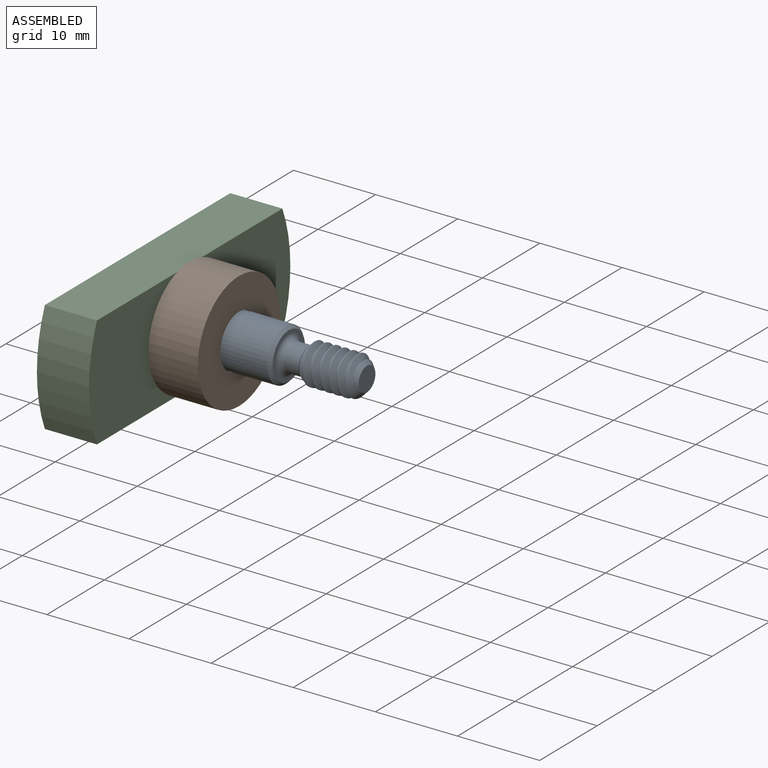
[diagram: assembled view]
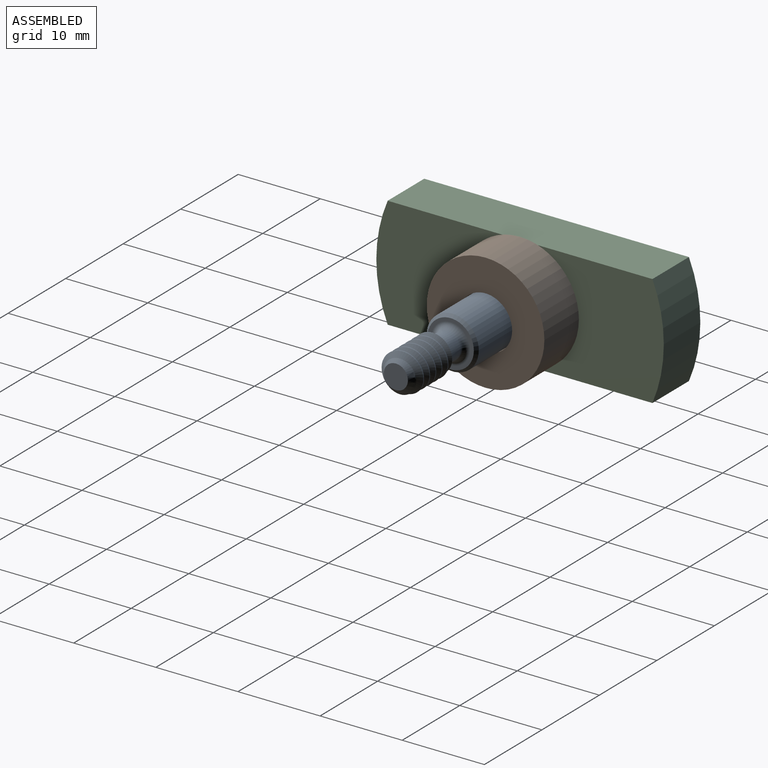
[diagram: assembled view, second angle]
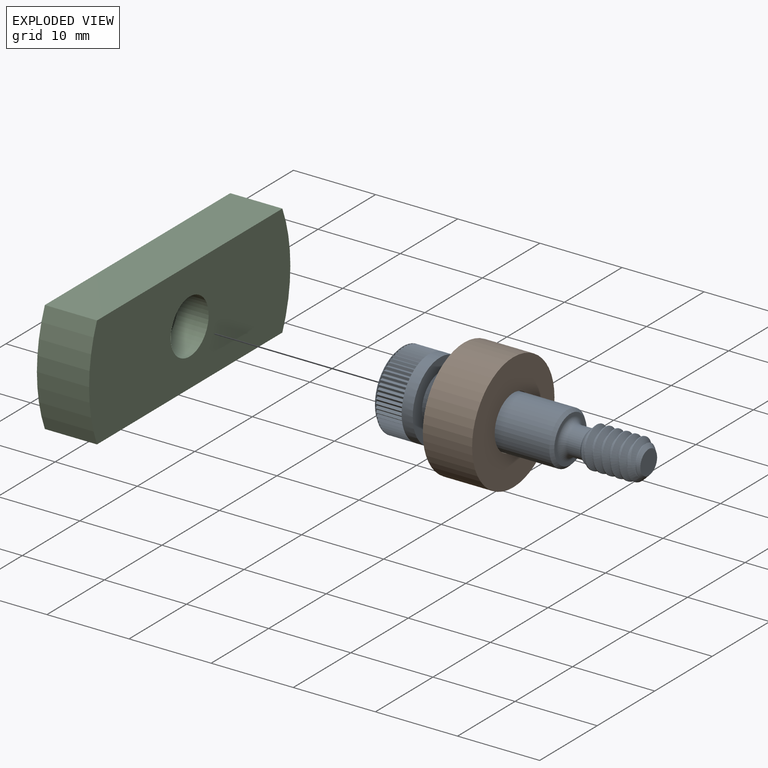
[diagram: exploded view]
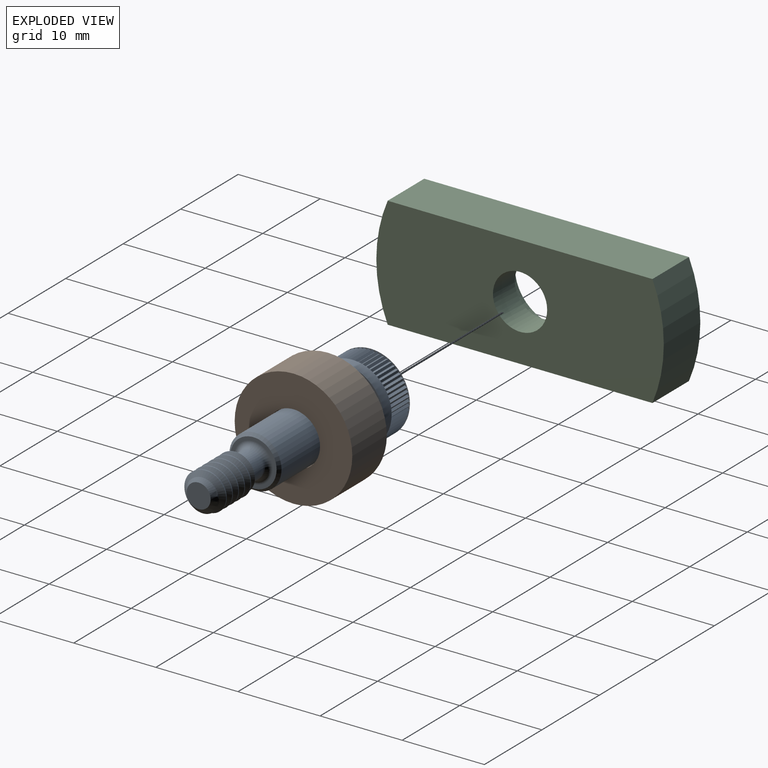
[diagram: exploded view, second angle]
ASSEMBLY  parts=3 mates=3
PART A: 331 faces, bbox 10.2x10.2x31 mm
  f0: cylinder r=4.76mm len=9.53mm, axis (0,0,-1), area 40.4mm2, adj f3,f30,f35,f36,f37,f38,f39,f40
  f1: plane 5.64x5.64mm, normal (0,0,-1), area 7.2mm2, adj f20,f29
  f2: plane 9.64x9.64mm, normal (0,0,1), area 53.8mm2, adj f4,f5,f6,f7,f8,f9,f330
  f3: plane 9.53x9.53mm, normal (0,0,-1), area 39.6mm2, adj f0,f17
  f4: cone r=1.83mm half-angle=45deg, axis (0,0,1), area 0mm2, adj f2,f11
  f5: cone r=1.83mm half-angle=45deg, axis (0,0,1), area 0mm2, adj f2,f12
  f6: cone r=1.83mm half-angle=45deg, axis (0,0,1), area 0mm2, adj f2,f13
  f7: cone r=1.83mm half-angle=45deg, axis (0,0,1), area 0mm2, adj f2,f14
  f8: cone r=1.83mm half-angle=45deg, axis (0,0,1), area 0mm2, adj f2,f15
  f9: cone r=1.83mm half-angle=45deg, axis (0,0,1), area 0mm2, adj f2,f16
  f10: plane 3.67x3.18mm, normal (0,0,1), area 8.7mm2, adj f11,f12,f13,f14,f15,f16
  f11: plane 3.08x2.28mm, normal (0.5,-0.87,0), area 4.1mm2, adj f4,f10,f12,f16
  f12: plane 3.08x2.53mm, normal (1,0,0), area 4.1mm2, adj f5,f10,f11,f13
  f13: plane 3.08x2.28mm, normal (0.5,0.87,0), area 4.1mm2, adj f6,f10,f12,f14
  f14: plane 3.08x2.28mm, normal (-0.5,0.87,0), area 4.1mm2, adj f7,f10,f13,f15
  f15: plane 3.08x2.53mm, normal (-1,0,0), area 4.1mm2, adj f8,f10,f14,f16
  f16: plane 3.08x2.28mm, normal (-0.5,-0.87,0), area 4.1mm2, adj f9,f10,f11,f15
  f17: cylinder r=3.17mm len=15.52mm, axis (0,0,-1), area 309.7mm2, adj f3,f29
  f18: cone r=1.67mm half-angle=45deg, axis (0,0,-1), area 6.5mm2, adj f19,f21,f25,f26,f27
  f19: cone r=1.67mm half-angle=45deg, axis (0,0,-1), area 0.4mm2, adj f18,f27,f28
  f20: torus R=2.38mm, axis (0,0,1), area 13.6mm2, adj f1,f21
  f21: cylinder r=1.67mm len=3.33mm, axis (0,0,1), area 17.5mm2, adj f18,f20
  f22: plane 2.92x2.92mm, normal (0,0,-1), area 6.7mm2, adj f23
  f23: cone r=1.46mm half-angle=45deg, axis (0,0,1), area 9.3mm2, adj f22,f24,f25,f26,f27
  f24: cone r=1.46mm half-angle=45deg, axis (0,0,1), area 0.6mm2, adj f23,f26,f27,f28
  f25: cylinder r=1.73mm len=6.82mm, axis (0,0,1), area 14mm2, adj f18,f23,f26,f27
  f26: bspline ~7.45x5.38mm, area 59.4mm2, adj f18,f23,f24,f25,f28
  f27: bspline ~7.28x5.38mm, area 59.5mm2, adj f18,f19,f23,f24,f25,f28
  f28: cylinder r=2.41mm len=5.44mm, axis (0,0,1), area 9.6mm2, adj f19,f24,f26,f27
  f29: cone r=2.82mm half-angle=45deg, axis (0,0,1), area 9.4mm2, adj f1,f17
  f30: plane 0.5x0.24mm, normal (0,0,1), area 0.1mm2, adj f0,f32,f33,f34
  f31: plane 0.5x0.24mm, normal (0,0,-1), area 0.1mm2, adj f32,f33,f34,f330
  f32: plane 3.18x0.22mm, normal (0.71,-0.71,0), area 1mm2, adj f30,f31,f34,f328
  f33: plane 3.18x0.22mm, normal (0.71,0.71,0), area 1mm2, adj f30,f31,f34,f153
  f34: cylinder r=0.04mm len=3.18mm, axis (0,0,1), area 0.2mm2, adj f30,f31,f32,f33
  f35: plane 0.5x0.26mm, normal (0,0,1), area 0.1mm2, adj f0,f153,f154,f155
  f36: plane 0.49x0.28mm, normal (0,0,1), area 0.1mm2, adj f0,f156,f157,f158
  f37: plane 0.47x0.3mm, normal (0,0,1), area 0.1mm2, adj f0,f159,f160,f161
  f38: plane 0.46x0.32mm, normal (0,0,1), area 0.1mm2, adj f0,f162,f163,f164
  f39: plane 0.43x0.33mm, normal (0,0,1), area 0.1mm2, adj f0,f165,f166,f167
  f40: plane 0.4x0.34mm, normal (0,0,1), area 0.1mm2, adj f0,f168,f169,f170
  f41: plane 0.37x0.35mm, normal (0,0,1), area 0.1mm2, adj f0,f171,f172,f173
  f42: plane 0.37x0.35mm, normal (0,0,1), area 0.1mm2, adj f0,f174,f175,f176
  f43: plane 0.4x0.34mm, normal (0,0,1), area 0.1mm2, adj f0,f177,f178,f179
  f44: plane 0.43x0.33mm, normal (0,0,1), area 0.1mm2, adj f0,f180,f181,f182
  f45: plane 0.46x0.32mm, normal (0,0,1), area 0.1mm2, adj f0,f183,f184,f185
  f46: plane 0.47x0.3mm, normal (0,0,1), area 0.1mm2, adj f0,f186,f187,f188
  f47: plane 0.49x0.28mm, normal (0,0,1), area 0.1mm2, adj f0,f189,f190,f191
  f48: plane 0.5x0.26mm, normal (0,0,1), area 0.1mm2, adj f0,f192,f193,f194
  f49: plane 0.5x0.26mm, normal (0,0,1), area 0.1mm2, adj f0,f327,f328,f329
  f50: plane 0.49x0.28mm, normal (0,0,1), area 0.1mm2, adj f0,f324,f325,f326
  f51: plane 0.47x0.3mm, normal (0,0,1), area 0.1mm2, adj f0,f321,f322,f323
  f52: plane 0.46x0.32mm, normal (0,0,1), area 0.1mm2, adj f0,f318,f319,f320
  f53: plane 0.43x0.33mm, normal (0,0,1), area 0.1mm2, adj f0,f315,f316,f317
  f54: plane 0.4x0.34mm, normal (0,0,1), area 0.1mm2, adj f0,f312,f313,f314
  f55: plane 0.37x0.35mm, normal (0,0,1), area 0.1mm2, adj f0,f309,f310,f311
  f56: plane 0.37x0.35mm, normal (0,0,1), area 0.1mm2, adj f0,f306,f307,f308
  f57: plane 0.4x0.34mm, normal (0,0,1), area 0.1mm2, adj f0,f303,f304,f305
  f58: plane 0.43x0.33mm, normal (0,0,1), area 0.1mm2, adj f0,f300,f301,f302
  f59: plane 0.46x0.32mm, normal (0,0,1), area 0.1mm2, adj f0,f297,f298,f299
  f60: plane 0.47x0.3mm, normal (0,0,1), area 0.1mm2, adj f0,f294,f295,f296
  f61: plane 0.49x0.28mm, normal (0,0,1), area 0.1mm2, adj f0,f291,f292,f293
  f62: plane 0.5x0.26mm, normal (0,0,1), area 0.1mm2, adj f0,f288,f289,f290
  f63: plane 0.5x0.24mm, normal (0,0,1), area 0.1mm2, adj f0,f285,f286,f287
  f64: plane 0.5x0.26mm, normal (0,0,1), area 0.1mm2, adj f0,f282,f283,f284
  f65: plane 0.49x0.28mm, normal (0,0,1), area 0.1mm2, adj f0,f279,f280,f281
  f66: plane 0.47x0.3mm, normal (0,0,1), area 0.1mm2, adj f0,f276,f277,f278
  f67: plane 0.46x0.32mm, normal (0,0,1), area 0.1mm2, adj f0,f273,f274,f275
  f68: plane 0.43x0.33mm, normal (0,0,1), area 0.1mm2, adj f0,f270,f271,f272
  f69: plane 0.4x0.34mm, normal (0,0,1), area 0.1mm2, adj f0,f267,f268,f269
  f70: plane 0.37x0.35mm, normal (0,0,1), area 0.1mm2, adj f0,f264,f265,f266
  f71: plane 0.37x0.35mm, normal (0,0,1), area 0.1mm2, adj f0,f261,f262,f263
  f72: plane 0.4x0.34mm, normal (0,0,1), area 0.1mm2, adj f0,f258,f259,f260
  f73: plane 0.43x0.33mm, normal (0,0,1), area 0.1mm2, adj f0,f255,f256,f257
  f74: plane 0.46x0.32mm, normal (0,0,1), area 0.1mm2, adj f0,f252,f253,f254
  f75: plane 0.47x0.3mm, normal (0,0,1), area 0.1mm2, adj f0,f249,f250,f251
  f76: plane 0.49x0.28mm, normal (0,0,1), area 0.1mm2, adj f0,f246,f247,f248
  f77: plane 0.5x0.26mm, normal (0,0,1), area 0.1mm2, adj f0,f243,f244,f245
  f78: plane 0.5x0.24mm, normal (0,0,1), area 0.1mm2, adj f0,f240,f241,f242
  f79: plane 0.5x0.26mm, normal (0,0,1), area 0.1mm2, adj f0,f237,f238,f239
  f80: plane 0.49x0.28mm, normal (0,0,1), area 0.1mm2, adj f0,f234,f235,f236
  f81: plane 0.47x0.3mm, normal (0,0,1), area 0.1mm2, adj f0,f231,f232,f233
  f82: plane 0.46x0.32mm, normal (0,0,1), area 0.1mm2, adj f0,f228,f229,f230
  f83: plane 0.43x0.33mm, normal (0,0,1), area 0.1mm2, adj f0,f225,f226,f227
  f84: plane 0.4x0.34mm, normal (0,0,1), area 0.1mm2, adj f0,f222,f223,f224
  f85: plane 0.37x0.35mm, normal (0,0,1), area 0.1mm2, adj f0,f219,f220,f221
  f86: plane 0.37x0.35mm, normal (0,0,1), area 0.1mm2, adj f0,f216,f217,f218
  f87: plane 0.4x0.34mm, normal (0,0,1), area 0.1mm2, adj f0,f213,f214,f215
  f88: plane 0.43x0.33mm, normal (0,0,1), area 0.1mm2, adj f0,f210,f211,f212
  f89: plane 0.46x0.32mm, normal (0,0,1), area 0.1mm2, adj f0,f207,f208,f209
  f90: plane 0.47x0.3mm, normal (0,0,1), area 0.1mm2, adj f0,f204,f205,f206
  f91: plane 0.49x0.28mm, normal (0,0,1), area 0.1mm2, adj f0,f201,f202,f203
  f92: plane 0.5x0.26mm, normal (0,0,1), area 0.1mm2, adj f0,f198,f199,f200
  f93: plane 0.5x0.24mm, normal (0,0,1), area 0.1mm2, adj f0,f195,f196,f197
  f94: plane 0.5x0.26mm, normal (0,0,-1), area 0.1mm2, adj f153,f154,f155,f330
  f95: plane 0.49x0.28mm, normal (0,0,-1), area 0.1mm2, adj f156,f157,f158,f330
  f96: plane 0.47x0.3mm, normal (0,0,-1), area 0.1mm2, adj f159,f160,f161,f330
  f97: plane 0.46x0.32mm, normal (0,0,-1), area 0.1mm2, adj f162,f163,f164,f330
  f98: plane 0.43x0.33mm, normal (0,0,-1), area 0.1mm2, adj f165,f166,f167,f330
  f99: plane 0.4x0.34mm, normal (0,0,-1), area 0.1mm2, adj f168,f169,f170,f330
  f100: plane 0.37x0.35mm, normal (0,0,-1), area 0.1mm2, adj f171,f172,f173,f330
  f101: plane 0.37x0.35mm, normal (0,0,-1), area 0.1mm2, adj f174,f175,f176,f330
  f102: plane 0.4x0.34mm, normal (0,0,-1), area 0.1mm2, adj f177,f178,f179,f330
  f103: plane 0.43x0.33mm, normal (0,0,-1), area 0.1mm2, adj f180,f181,f182,f330
  f104: plane 0.46x0.32mm, normal (0,0,-1), area 0.1mm2, adj f183,f184,f185,f330
  f105: plane 0.47x0.3mm, normal (0,0,-1), area 0.1mm2, adj f186,f187,f188,f330
  f106: plane 0.49x0.28mm, normal (0,0,-1), area 0.1mm2, adj f189,f190,f191,f330
  f107: plane 0.5x0.26mm, normal (0,0,-1), area 0.1mm2, adj f192,f193,f194,f330
  f108: plane 0.5x0.26mm, normal (0,0,-1), area 0.1mm2, adj f327,f328,f329,f330
  f109: plane 0.49x0.28mm, normal (0,0,-1), area 0.1mm2, adj f324,f325,f326,f330
  f110: plane 0.47x0.3mm, normal (0,0,-1), area 0.1mm2, adj f321,f322,f323,f330
  f111: plane 0.46x0.32mm, normal (0,0,-1), area 0.1mm2, adj f318,f319,f320,f330
  f112: plane 0.43x0.33mm, normal (0,0,-1), area 0.1mm2, adj f315,f316,f317,f330
  f113: plane 0.4x0.34mm, normal (0,0,-1), area 0.1mm2, adj f312,f313,f314,f330
  f114: plane 0.37x0.35mm, normal (0,0,-1), area 0.1mm2, adj f309,f310,f311,f330
  f115: plane 0.37x0.35mm, normal (0,0,-1), area 0.1mm2, adj f306,f307,f308,f330
  f116: plane 0.4x0.34mm, normal (0,0,-1), area 0.1mm2, adj f303,f304,f305,f330
  f117: plane 0.43x0.33mm, normal (0,0,-1), area 0.1mm2, adj f300,f301,f302,f330
  f118: plane 0.46x0.32mm, normal (0,0,-1), area 0.1mm2, adj f297,f298,f299,f330
  f119: plane 0.47x0.3mm, normal (0,0,-1), area 0.1mm2, adj f294,f295,f296,f330
  f120: plane 0.49x0.28mm, normal (0,0,-1), area 0.1mm2, adj f291,f292,f293,f330
  f121: plane 0.5x0.26mm, normal (0,0,-1), area 0.1mm2, adj f288,f289,f290,f330
  f122: plane 0.5x0.24mm, normal (0,0,-1), area 0.1mm2, adj f285,f286,f287,f330
  f123: plane 0.5x0.26mm, normal (0,0,-1), area 0.1mm2, adj f282,f283,f284,f330
  f124: plane 0.49x0.28mm, normal (0,0,-1), area 0.1mm2, adj f279,f280,f281,f330
  f125: plane 0.47x0.3mm, normal (0,0,-1), area 0.1mm2, adj f276,f277,f278,f330
  f126: plane 0.46x0.32mm, normal (0,0,-1), area 0.1mm2, adj f273,f274,f275,f330
  f127: plane 0.43x0.33mm, normal (0,0,-1), area 0.1mm2, adj f270,f271,f272,f330
  f128: plane 0.4x0.34mm, normal (0,0,-1), area 0.1mm2, adj f267,f268,f269,f330
  f129: plane 0.37x0.35mm, normal (0,0,-1), area 0.1mm2, adj f264,f265,f266,f330
  f130: plane 0.37x0.35mm, normal (0,0,-1), area 0.1mm2, adj f261,f262,f263,f330
  f131: plane 0.4x0.34mm, normal (0,0,-1), area 0.1mm2, adj f258,f259,f260,f330
  f132: plane 0.43x0.33mm, normal (0,0,-1), area 0.1mm2, adj f255,f256,f257,f330
  f133: plane 0.46x0.32mm, normal (0,0,-1), area 0.1mm2, adj f252,f253,f254,f330
  f134: plane 0.47x0.3mm, normal (0,0,-1), area 0.1mm2, adj f249,f250,f251,f330
  f135: plane 0.49x0.28mm, normal (0,0,-1), area 0.1mm2, adj f246,f247,f248,f330
  f136: plane 0.5x0.26mm, normal (0,0,-1), area 0.1mm2, adj f243,f244,f245,f330
  f137: plane 0.5x0.24mm, normal (0,0,-1), area 0.1mm2, adj f240,f241,f242,f330
  f138: plane 0.5x0.26mm, normal (0,0,-1), area 0.1mm2, adj f237,f238,f239,f330
  f139: plane 0.49x0.28mm, normal (0,0,-1), area 0.1mm2, adj f234,f235,f236,f330
  f140: plane 0.47x0.3mm, normal (0,0,-1), area 0.1mm2, adj f231,f232,f233,f330
  f141: plane 0.46x0.32mm, normal (0,0,-1), area 0.1mm2, adj f228,f229,f230,f330
  f142: plane 0.43x0.33mm, normal (0,0,-1), area 0.1mm2, adj f225,f226,f227,f330
  f143: plane 0.4x0.34mm, normal (0,0,-1), area 0.1mm2, adj f222,f223,f224,f330
  f144: plane 0.37x0.35mm, normal (0,0,-1), area 0.1mm2, adj f219,f220,f221,f330
  f145: plane 0.37x0.35mm, normal (0,0,-1), area 0.1mm2, adj f216,f217,f218,f330
  f146: plane 0.4x0.34mm, normal (0,0,-1), area 0.1mm2, adj f213,f214,f215,f330
  f147: plane 0.43x0.33mm, normal (0,0,-1), area 0.1mm2, adj f210,f211,f212,f330
  f148: plane 0.46x0.32mm, normal (0,0,-1), area 0.1mm2, adj f207,f208,f209,f330
  f149: plane 0.47x0.3mm, normal (0,0,-1), area 0.1mm2, adj f204,f205,f206,f330
  f150: plane 0.49x0.28mm, normal (0,0,-1), area 0.1mm2, adj f201,f202,f203,f330
  f151: plane 0.5x0.26mm, normal (0,0,-1), area 0.1mm2, adj f198,f199,f200,f330
  f152: plane 0.5x0.24mm, normal (0,0,-1), area 0.1mm2, adj f195,f196,f197,f330
  f153: plane 3.18x0.24mm, normal (0.63,-0.78,0), area 1mm2, adj f33,f35,f94,f155
  f154: plane 3.18x0.24mm, normal (0.78,0.63,0), area 1mm2, adj f35,f94,f155,f156
  f155: cylinder r=0.04mm len=3.18mm, axis (0,0,1), area 0.2mm2, adj f35,f94,f153,f154
  f156: plane 3.18x0.26mm, normal (0.54,-0.84,0), area 1mm2, adj f36,f95,f154,f158
  f157: plane 3.18x0.26mm, normal (0.84,0.54,0), area 1mm2, adj f36,f95,f158,f159
  f158: cylinder r=0.04mm len=3.18mm, axis (0,0,1), area 0.2mm2, adj f36,f95,f156,f157
  f159: plane 3.18x0.28mm, normal (0.45,-0.89,0), area 1mm2, adj f37,f96,f157,f161
  f160: plane 3.18x0.28mm, normal (0.89,0.45,0), area 1mm2, adj f37,f96,f161,f162
  f161: cylinder r=0.04mm len=3.18mm, axis (0,0,1), area 0.2mm2, adj f37,f96,f159,f160
  f162: plane 3.18x0.29mm, normal (0.36,-0.93,0), area 1mm2, adj f38,f97,f160,f164
  f163: plane 3.18x0.29mm, normal (0.93,0.36,0), area 1mm2, adj f38,f97,f164,f165
  f164: cylinder r=0.04mm len=3.18mm, axis (0,0,1), area 0.2mm2, adj f38,f97,f162,f163
  f165: plane 3.18x0.3mm, normal (0.26,-0.97,0), area 1mm2, adj f39,f98,f163,f167
  f166: plane 3.18x0.3mm, normal (0.97,0.26,0), area 1mm2, adj f39,f98,f167,f168
  f167: cylinder r=0.04mm len=3.18mm, axis (0,0,1), area 0.2mm2, adj f39,f98,f165,f166
  f168: plane 3.18x0.31mm, normal (0.16,-0.99,0), area 1mm2, adj f40,f99,f166,f170
  f169: plane 3.18x0.31mm, normal (0.99,0.16,0), area 1mm2, adj f40,f99,f170,f171
  f170: cylinder r=0.04mm len=3.18mm, axis (0,0,1), area 0.2mm2, adj f40,f99,f168,f169
  f171: plane 3.18x0.31mm, normal (0.05,-1,0), area 1mm2, adj f41,f100,f169,f173
  f172: plane 3.18x0.31mm, normal (1,0.05,0), area 1mm2, adj f41,f100,f173,f174
  f173: cylinder r=0.04mm len=3.18mm, axis (0,0,1), area 0.2mm2, adj f41,f100,f171,f172
  f174: plane 3.18x0.31mm, normal (-0.05,-1,0), area 1mm2, adj f42,f101,f172,f176
  f175: plane 3.18x0.31mm, normal (1,-0.05,0), area 1mm2, adj f42,f101,f176,f177
  f176: cylinder r=0.04mm len=3.18mm, axis (0,0,1), area 0.2mm2, adj f42,f101,f174,f175
  f177: plane 3.18x0.31mm, normal (-0.16,-0.99,0), area 1mm2, adj f43,f102,f175,f179
  f178: plane 3.18x0.31mm, normal (0.99,-0.16,0), area 1mm2, adj f43,f102,f179,f180
  f179: cylinder r=0.04mm len=3.18mm, axis (0,0,1), area 0.2mm2, adj f43,f102,f177,f178
  f180: plane 3.18x0.3mm, normal (-0.26,-0.97,0), area 1mm2, adj f44,f103,f178,f182
  f181: plane 3.18x0.3mm, normal (0.97,-0.26,0), area 1mm2, adj f44,f103,f182,f183
  f182: cylinder r=0.04mm len=3.18mm, axis (0,0,1), area 0.2mm2, adj f44,f103,f180,f181
  f183: plane 3.18x0.29mm, normal (-0.36,-0.93,0), area 1mm2, adj f45,f104,f181,f185
  f184: plane 3.18x0.29mm, normal (0.93,-0.36,0), area 1mm2, adj f45,f104,f185,f186
  f185: cylinder r=0.04mm len=3.18mm, axis (0,0,1), area 0.2mm2, adj f45,f104,f183,f184
  f186: plane 3.18x0.28mm, normal (-0.45,-0.89,0), area 1mm2, adj f46,f105,f184,f188
  f187: plane 3.18x0.28mm, normal (0.89,-0.45,0), area 1mm2, adj f46,f105,f188,f189
  f188: cylinder r=0.04mm len=3.18mm, axis (0,0,1), area 0.2mm2, adj f46,f105,f186,f187
  f189: plane 3.18x0.26mm, normal (-0.54,-0.84,0), area 1mm2, adj f47,f106,f187,f191
  f190: plane 3.18x0.26mm, normal (0.84,-0.54,0), area 1mm2, adj f47,f106,f191,f192
  f191: cylinder r=0.04mm len=3.18mm, axis (0,0,1), area 0.2mm2, adj f47,f106,f189,f190
  f192: plane 3.18x0.24mm, normal (-0.63,-0.78,0), area 1mm2, adj f48,f107,f190,f194
  f193: plane 3.18x0.24mm, normal (0.78,-0.63,0), area 1mm2, adj f48,f107,f194,f195
  f194: cylinder r=0.04mm len=3.18mm, axis (0,0,1), area 0.2mm2, adj f48,f107,f192,f193
  f195: plane 3.18x0.22mm, normal (-0.71,-0.71,0), area 1mm2, adj f93,f152,f193,f197
  f196: plane 3.18x0.22mm, normal (0.71,-0.71,0), area 1mm2, adj f93,f152,f197,f198
  f197: cylinder r=0.04mm len=3.18mm, axis (0,0,1), area 0.2mm2, adj f93,f152,f195,f196
  f198: plane 3.18x0.24mm, normal (-0.78,-0.63,0), area 1mm2, adj f92,f151,f196,f200
  f199: plane 3.18x0.24mm, normal (0.63,-0.78,0), area 1mm2, adj f92,f151,f200,f201
  f200: cylinder r=0.04mm len=3.18mm, axis (0,0,1), area 0.2mm2, adj f92,f151,f198,f199
  f201: plane 3.18x0.26mm, normal (-0.84,-0.54,0), area 1mm2, adj f91,f150,f199,f203
  f202: plane 3.18x0.26mm, normal (0.54,-0.84,0), area 1mm2, adj f91,f150,f203,f204
  f203: cylinder r=0.04mm len=3.18mm, axis (0,0,1), area 0.2mm2, adj f91,f150,f201,f202
  f204: plane 3.18x0.28mm, normal (-0.89,-0.45,0), area 1mm2, adj f90,f149,f202,f206
  f205: plane 3.18x0.28mm, normal (0.45,-0.89,0), area 1mm2, adj f90,f149,f206,f207
  f206: cylinder r=0.04mm len=3.18mm, axis (0,0,1), area 0.2mm2, adj f90,f149,f204,f205
  f207: plane 3.18x0.29mm, normal (-0.93,-0.36,0), area 1mm2, adj f89,f148,f205,f209
  f208: plane 3.18x0.29mm, normal (0.36,-0.93,0), area 1mm2, adj f89,f148,f209,f210
  f209: cylinder r=0.04mm len=3.18mm, axis (0,0,1), area 0.2mm2, adj f89,f148,f207,f208
  f210: plane 3.18x0.3mm, normal (-0.97,-0.26,0), area 1mm2, adj f88,f147,f208,f212
  f211: plane 3.18x0.3mm, normal (0.26,-0.97,0), area 1mm2, adj f88,f147,f212,f213
  f212: cylinder r=0.04mm len=3.18mm, axis (0,0,1), area 0.2mm2, adj f88,f147,f210,f211
  f213: plane 3.18x0.31mm, normal (-0.99,-0.16,0), area 1mm2, adj f87,f146,f211,f215
  f214: plane 3.18x0.31mm, normal (0.16,-0.99,0), area 1mm2, adj f87,f146,f215,f216
  f215: cylinder r=0.04mm len=3.18mm, axis (0,0,1), area 0.2mm2, adj f87,f146,f213,f214
  f216: plane 3.18x0.31mm, normal (-1,-0.05,0), area 1mm2, adj f86,f145,f214,f218
  f217: plane 3.18x0.31mm, normal (0.05,-1,0), area 1mm2, adj f86,f145,f218,f219
  f218: cylinder r=0.04mm len=3.18mm, axis (0,0,1), area 0.2mm2, adj f86,f145,f216,f217
  f219: plane 3.18x0.31mm, normal (-1,0.05,0), area 1mm2, adj f85,f144,f217,f221
  f220: plane 3.18x0.31mm, normal (-0.05,-1,0), area 1mm2, adj f85,f144,f221,f222
  f221: cylinder r=0.04mm len=3.18mm, axis (0,0,1), area 0.2mm2, adj f85,f144,f219,f220
  f222: plane 3.18x0.31mm, normal (-0.99,0.16,0), area 1mm2, adj f84,f143,f220,f224
  f223: plane 3.18x0.31mm, normal (-0.16,-0.99,0), area 1mm2, adj f84,f143,f224,f225
  f224: cylinder r=0.04mm len=3.18mm, axis (0,0,1), area 0.2mm2, adj f84,f143,f222,f223
  f225: plane 3.18x0.3mm, normal (-0.97,0.26,0), area 1mm2, adj f83,f142,f223,f227
  f226: plane 3.18x0.3mm, normal (-0.26,-0.97,0), area 1mm2, adj f83,f142,f227,f228
  f227: cylinder r=0.04mm len=3.18mm, axis (0,0,1), area 0.2mm2, adj f83,f142,f225,f226
  f228: plane 3.18x0.29mm, normal (-0.93,0.36,0), area 1mm2, adj f82,f141,f226,f230
  f229: plane 3.18x0.29mm, normal (-0.36,-0.93,0), area 1mm2, adj f82,f141,f230,f231
  f230: cylinder r=0.04mm len=3.18mm, axis (0,0,1), area 0.2mm2, adj f82,f141,f228,f229
  f231: plane 3.18x0.28mm, normal (-0.89,0.45,0), area 1mm2, adj f81,f140,f229,f233
  f232: plane 3.18x0.28mm, normal (-0.45,-0.89,0), area 1mm2, adj f81,f140,f233,f234
  f233: cylinder r=0.04mm len=3.18mm, axis (0,0,1), area 0.2mm2, adj f81,f140,f231,f232
  f234: plane 3.18x0.26mm, normal (-0.84,0.54,0), area 1mm2, adj f80,f139,f232,f236
  f235: plane 3.18x0.26mm, normal (-0.54,-0.84,0), area 1mm2, adj f80,f139,f236,f237
  f236: cylinder r=0.04mm len=3.18mm, axis (0,0,1), area 0.2mm2, adj f80,f139,f234,f235
  f237: plane 3.18x0.24mm, normal (-0.78,0.63,0), area 1mm2, adj f79,f138,f235,f239
  f238: plane 3.18x0.24mm, normal (-0.63,-0.78,0), area 1mm2, adj f79,f138,f239,f240
  f239: cylinder r=0.04mm len=3.18mm, axis (0,0,1), area 0.2mm2, adj f79,f138,f237,f238
  f240: plane 3.18x0.22mm, normal (-0.71,0.71,0), area 1mm2, adj f78,f137,f238,f242
  f241: plane 3.18x0.22mm, normal (-0.71,-0.71,0), area 1mm2, adj f78,f137,f242,f243
  f242: cylinder r=0.04mm len=3.18mm, axis (0,0,1), area 0.2mm2, adj f78,f137,f240,f241
  f243: plane 3.18x0.24mm, normal (-0.63,0.78,0), area 1mm2, adj f77,f136,f241,f245
  f244: plane 3.18x0.24mm, normal (-0.78,-0.63,0), area 1mm2, adj f77,f136,f245,f246
  f245: cylinder r=0.04mm len=3.18mm, axis (0,0,1), area 0.2mm2, adj f77,f136,f243,f244
  f246: plane 3.18x0.26mm, normal (-0.54,0.84,0), area 1mm2, adj f76,f135,f244,f248
  f247: plane 3.18x0.26mm, normal (-0.84,-0.54,0), area 1mm2, adj f76,f135,f248,f249
  f248: cylinder r=0.04mm len=3.18mm, axis (0,0,1), area 0.2mm2, adj f76,f135,f246,f247
  f249: plane 3.18x0.28mm, normal (-0.45,0.89,0), area 1mm2, adj f75,f134,f247,f251
  f250: plane 3.18x0.28mm, normal (-0.89,-0.45,0), area 1mm2, adj f75,f134,f251,f252
  f251: cylinder r=0.04mm len=3.18mm, axis (0,0,1), area 0.2mm2, adj f75,f134,f249,f250
  f252: plane 3.18x0.29mm, normal (-0.36,0.93,0), area 1mm2, adj f74,f133,f250,f254
  f253: plane 3.18x0.29mm, normal (-0.93,-0.36,0), area 1mm2, adj f74,f133,f254,f255
  f254: cylinder r=0.04mm len=3.18mm, axis (0,0,1), area 0.2mm2, adj f74,f133,f252,f253
  f255: plane 3.18x0.3mm, normal (-0.26,0.97,0), area 1mm2, adj f73,f132,f253,f257
  f256: plane 3.18x0.3mm, normal (-0.97,-0.26,0), area 1mm2, adj f73,f132,f257,f258
  f257: cylinder r=0.04mm len=3.18mm, axis (0,0,1), area 0.2mm2, adj f73,f132,f255,f256
  f258: plane 3.18x0.31mm, normal (-0.16,0.99,0), area 1mm2, adj f72,f131,f256,f260
  f259: plane 3.18x0.31mm, normal (-0.99,-0.16,0), area 1mm2, adj f72,f131,f260,f261
  f260: cylinder r=0.04mm len=3.18mm, axis (0,0,1), area 0.2mm2, adj f72,f131,f258,f259
  f261: plane 3.18x0.31mm, normal (-0.05,1,0), area 1mm2, adj f71,f130,f259,f263
  f262: plane 3.18x0.31mm, normal (-1,-0.05,0), area 1mm2, adj f71,f130,f263,f264
  f263: cylinder r=0.04mm len=3.18mm, axis (0,0,1), area 0.2mm2, adj f71,f130,f261,f262
  f264: plane 3.18x0.31mm, normal (0.05,1,0), area 1mm2, adj f70,f129,f262,f266
  f265: plane 3.18x0.31mm, normal (-1,0.05,0), area 1mm2, adj f70,f129,f266,f267
  f266: cylinder r=0.04mm len=3.18mm, axis (0,0,1), area 0.2mm2, adj f70,f129,f264,f265
  f267: plane 3.18x0.31mm, normal (0.16,0.99,0), area 1mm2, adj f69,f128,f265,f269
  f268: plane 3.18x0.31mm, normal (-0.99,0.16,0), area 1mm2, adj f69,f128,f269,f270
  f269: cylinder r=0.04mm len=3.18mm, axis (0,0,1), area 0.2mm2, adj f69,f128,f267,f268
  f270: plane 3.18x0.3mm, normal (0.26,0.97,0), area 1mm2, adj f68,f127,f268,f272
  f271: plane 3.18x0.3mm, normal (-0.97,0.26,0), area 1mm2, adj f68,f127,f272,f273
  f272: cylinder r=0.04mm len=3.18mm, axis (0,0,1), area 0.2mm2, adj f68,f127,f270,f271
  f273: plane 3.18x0.29mm, normal (0.36,0.93,0), area 1mm2, adj f67,f126,f271,f275
  f274: plane 3.18x0.29mm, normal (-0.93,0.36,0), area 1mm2, adj f67,f126,f275,f276
  f275: cylinder r=0.04mm len=3.18mm, axis (0,0,1), area 0.2mm2, adj f67,f126,f273,f274
  f276: plane 3.18x0.28mm, normal (0.45,0.89,0), area 1mm2, adj f66,f125,f274,f278
  f277: plane 3.18x0.28mm, normal (-0.89,0.45,0), area 1mm2, adj f66,f125,f278,f279
  f278: cylinder r=0.04mm len=3.18mm, axis (0,0,1), area 0.2mm2, adj f66,f125,f276,f277
  f279: plane 3.18x0.26mm, normal (0.54,0.84,0), area 1mm2, adj f65,f124,f277,f281
  f280: plane 3.18x0.26mm, normal (-0.84,0.54,0), area 1mm2, adj f65,f124,f281,f282
  f281: cylinder r=0.04mm len=3.18mm, axis (0,0,1), area 0.2mm2, adj f65,f124,f279,f280
  f282: plane 3.18x0.24mm, normal (0.63,0.78,0), area 1mm2, adj f64,f123,f280,f284
  f283: plane 3.18x0.24mm, normal (-0.78,0.63,0), area 1mm2, adj f64,f123,f284,f285
  f284: cylinder r=0.04mm len=3.18mm, axis (0,0,1), area 0.2mm2, adj f64,f123,f282,f283
  f285: plane 3.18x0.22mm, normal (0.71,0.71,0), area 1mm2, adj f63,f122,f283,f287
  f286: plane 3.18x0.22mm, normal (-0.71,0.71,0), area 1mm2, adj f63,f122,f287,f288
  f287: cylinder r=0.04mm len=3.18mm, axis (0,0,1), area 0.2mm2, adj f63,f122,f285,f286
  f288: plane 3.18x0.24mm, normal (0.78,0.63,0), area 1mm2, adj f62,f121,f286,f290
  f289: plane 3.18x0.24mm, normal (-0.63,0.78,0), area 1mm2, adj f62,f121,f290,f291
  f290: cylinder r=0.04mm len=3.18mm, axis (0,0,1), area 0.2mm2, adj f62,f121,f288,f289
  f291: plane 3.18x0.26mm, normal (0.84,0.54,0), area 1mm2, adj f61,f120,f289,f293
  f292: plane 3.18x0.26mm, normal (-0.54,0.84,0), area 1mm2, adj f61,f120,f293,f294
  f293: cylinder r=0.04mm len=3.18mm, axis (0,0,1), area 0.2mm2, adj f61,f120,f291,f292
  f294: plane 3.18x0.28mm, normal (0.89,0.45,0), area 1mm2, adj f60,f119,f292,f296
  f295: plane 3.18x0.28mm, normal (-0.45,0.89,0), area 1mm2, adj f60,f119,f296,f297
  f296: cylinder r=0.04mm len=3.18mm, axis (0,0,1), area 0.2mm2, adj f60,f119,f294,f295
  f297: plane 3.18x0.29mm, normal (0.93,0.36,0), area 1mm2, adj f59,f118,f295,f299
  f298: plane 3.18x0.29mm, normal (-0.36,0.93,0), area 1mm2, adj f59,f118,f299,f300
  f299: cylinder r=0.04mm len=3.18mm, axis (0,0,1), area 0.2mm2, adj f59,f118,f297,f298
  f300: plane 3.18x0.3mm, normal (0.97,0.26,0), area 1mm2, adj f58,f117,f298,f302
  f301: plane 3.18x0.3mm, normal (-0.26,0.97,0), area 1mm2, adj f58,f117,f302,f303
  f302: cylinder r=0.04mm len=3.18mm, axis (0,0,1), area 0.2mm2, adj f58,f117,f300,f301
  f303: plane 3.18x0.31mm, normal (0.99,0.16,0), area 1mm2, adj f57,f116,f301,f305
  f304: plane 3.18x0.31mm, normal (-0.16,0.99,0), area 1mm2, adj f57,f116,f305,f306
  f305: cylinder r=0.04mm len=3.18mm, axis (0,0,1), area 0.2mm2, adj f57,f116,f303,f304
  f306: plane 3.18x0.31mm, normal (1,0.05,0), area 1mm2, adj f56,f115,f304,f308
  f307: plane 3.18x0.31mm, normal (-0.05,1,0), area 1mm2, adj f56,f115,f308,f309
  f308: cylinder r=0.04mm len=3.18mm, axis (0,0,1), area 0.2mm2, adj f56,f115,f306,f307
  f309: plane 3.18x0.31mm, normal (1,-0.05,0), area 1mm2, adj f55,f114,f307,f311
  f310: plane 3.18x0.31mm, normal (0.05,1,0), area 1mm2, adj f55,f114,f311,f312
  f311: cylinder r=0.04mm len=3.18mm, axis (0,0,1), area 0.2mm2, adj f55,f114,f309,f310
  f312: plane 3.18x0.31mm, normal (0.99,-0.16,0), area 1mm2, adj f54,f113,f310,f314
  f313: plane 3.18x0.31mm, normal (0.16,0.99,0), area 1mm2, adj f54,f113,f314,f315
  f314: cylinder r=0.04mm len=3.18mm, axis (0,0,1), area 0.2mm2, adj f54,f113,f312,f313
  f315: plane 3.18x0.3mm, normal (0.97,-0.26,0), area 1mm2, adj f53,f112,f313,f317
  f316: plane 3.18x0.3mm, normal (0.26,0.97,0), area 1mm2, adj f53,f112,f317,f318
  f317: cylinder r=0.04mm len=3.18mm, axis (0,0,1), area 0.2mm2, adj f53,f112,f315,f316
  f318: plane 3.18x0.29mm, normal (0.93,-0.36,0), area 1mm2, adj f52,f111,f316,f320
  f319: plane 3.18x0.29mm, normal (0.36,0.93,0), area 1mm2, adj f52,f111,f320,f321
  f320: cylinder r=0.04mm len=3.18mm, axis (0,0,1), area 0.2mm2, adj f52,f111,f318,f319
  f321: plane 3.18x0.28mm, normal (0.89,-0.45,0), area 1mm2, adj f51,f110,f319,f323
  f322: plane 3.18x0.28mm, normal (0.45,0.89,0), area 1mm2, adj f51,f110,f323,f324
  f323: cylinder r=0.04mm len=3.18mm, axis (0,0,1), area 0.2mm2, adj f51,f110,f321,f322
  f324: plane 3.18x0.26mm, normal (0.84,-0.54,0), area 1mm2, adj f50,f109,f322,f326
  f325: plane 3.18x0.26mm, normal (0.54,0.84,0), area 1mm2, adj f50,f109,f326,f327
  f326: cylinder r=0.04mm len=3.18mm, axis (0,0,1), area 0.2mm2, adj f50,f109,f324,f325
  f327: plane 3.18x0.24mm, normal (0.78,-0.63,0), area 1mm2, adj f49,f108,f325,f329
  f328: plane 3.18x0.24mm, normal (0.63,0.78,0), area 1mm2, adj f32,f49,f108,f329
  f329: cylinder r=0.04mm len=3.18mm, axis (0,0,1), area 0.2mm2, adj f49,f108,f327,f328
  f330: cone r=4.52mm half-angle=45deg, axis (0,0,-1), area 9.8mm2, adj f2,f31,f94,f95,f96,f97,f98,f99
PART B: 4 faces, bbox 6x14.3x14.3 mm
  f0: cylinder r=7.16mm len=14.33mm, axis (-1,0,0), area 270mm2, adj f1,f2
  f1: plane 14.33x14.33mm, normal (1,0,0), area 128.2mm2, adj f0,f3
  f2: plane 14.33x14.33mm, normal (-1,0,0), area 128.2mm2, adj f0,f3
  f3: cylinder r=3.24mm len=6.48mm, axis (1,0,0), area 122.1mm2, adj f1,f2
PART C: 9 faces, bbox 6.4x35x13.6 mm
  f0: cylinder r=3.3mm len=6.6mm, axis (1,0,0), area 79mm2, adj f5,f7
  f1: cylinder r=17.5mm len=13.64mm, axis (-1,0,0), area 89mm2, adj f2,f4,f5,f6
  f2: plane 32.23x6.35mm, normal (0,0,-1), area 204.7mm2, adj f1,f3,f5,f6
  f3: cylinder r=17.5mm len=13.64mm, axis (-1,0,0), area 89mm2, adj f2,f4,f5,f6
  f4: plane 32.23x6.35mm, normal (0,0,1), area 204.7mm2, adj f1,f3,f5,f6
  f5: plane 35x13.64mm, normal (1,0,0), area 430.8mm2, adj f0,f1,f2,f3,f4
  f6: plane 35x13.64mm, normal (-1,0,0), area 384mm2, adj f1,f2,f3,f4,f8
  f7: plane 10.16x10.16mm, normal (-1,0,0), area 46.8mm2, adj f0,f8
  f8: cylinder r=5.08mm len=10.16mm, axis (-1,0,0), area 81.1mm2, adj f6,f7
PLACE A rot(axis=(0,-1,0),90deg) t=(-1.43,0,-10.89)mm
PLACE B t=(2.38,0,18.76)mm
PLACE C t=(-3.97,53.19,-53.36)mm
MATE fastened A.f0 <-> C.f0  axis (1,0,0) through (-1.43,0,-10.89)mm
MATE fastened B.f0 <-> C.f0  axis (-1,0,0) through (2.38,0,-10.89)mm
MATE slider C.f0 <-> A.f0  axis (1,0,0) through (0.47,0,-10.89)mm
